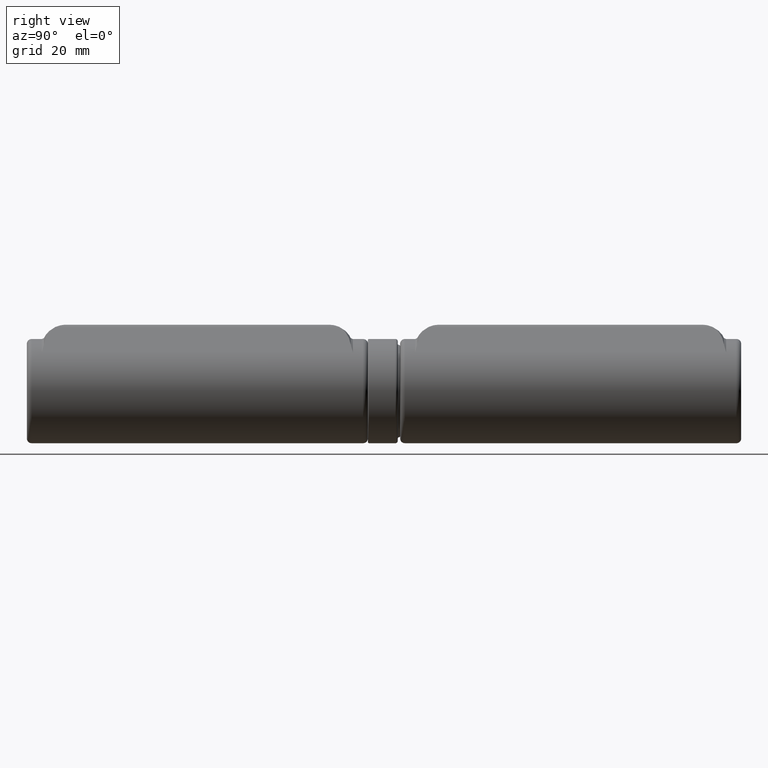
[diagram: clean part render]
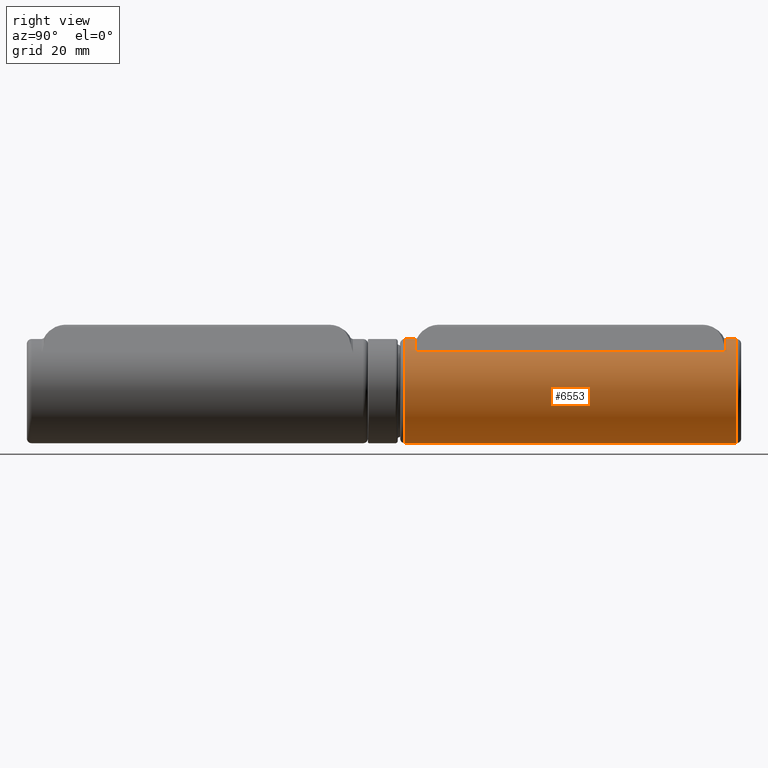
[diagram: same view with one face highlighted and labeled with its STEP entity id]
A machine part, right view. The second image highlights one B-rep face of the part: STEP entity #6553.
In plain terms, the highlighted cylindrical surface (bore or boss wall) has radius 11 mm, axis along (-0, -1, -0).
Its self-contained STEP definition (entity closure, byte-faithful):
#148 = EDGE_CURVE ( 'NONE', #4012, #4012, #6166, .T. ) ;
#196 = DIRECTION ( 'NONE',  ( 0.000000000000000000, 0.000000000000000000, -1.000000000000000000 ) ) ;
#400 = CARTESIAN_POINT ( 'NONE',  ( 0.000000000000000000, -32.81640379061052215, 0.000000000000000000 ) ) ;
#421 = VERTEX_POINT ( 'NONE', #3171 ) ;
#499 = DIRECTION ( 'NONE',  ( 0.000000000000000000, 0.000000000000000000, 1.000000000000000000 ) ) ;
#630 = ORIENTED_EDGE ( 'NONE', *, *, #10762, .F. ) ;
#875 = CIRCLE ( 'NONE', #5554, 10.99999999999999822 ) ;
#910 = DIRECTION ( 'NONE',  ( -0.000000000000000000, -1.000000000000000000, -0.000000000000000000 ) ) ;
#1173 = CARTESIAN_POINT ( 'NONE',  ( 7.293008042015048709, 32.81640379061051505, 8.234806233245793194 ) ) ;
#1808 = DIRECTION ( 'NONE',  ( 0.000000000000000000, 0.000000000000000000, 1.000000000000000000 ) ) ;
#2205 = LINE ( 'NONE', #2606, #11138 ) ;
#2429 = VERTEX_POINT ( 'NONE', #7551 ) ;
#2606 = CARTESIAN_POINT ( 'NONE',  ( 7.293008042015048709, 36.00000000000000000, 8.234806233245793194 ) ) ;
#2904 = DIRECTION ( 'NONE',  ( 0.000000000000000000, 0.000000000000000000, 1.000000000000000000 ) ) ;
#3066 = ORIENTED_EDGE ( 'NONE', *, *, #148, .T. ) ;
#3112 = CIRCLE ( 'NONE', #3821, 10.99999999999999822 ) ;
#3171 = CARTESIAN_POINT ( 'NONE',  ( 0.000000000000000000, 34.99999999999999289, 10.99999999999999822 ) ) ;
#3215 = EDGE_CURVE ( 'NONE', #11134, #7795, #3112, .T. ) ;
#3757 = DIRECTION ( 'NONE',  ( -0.000000000000000000, -1.000000000000000000, -0.000000000000000000 ) ) ;
#3821 = AXIS2_PLACEMENT_3D ( 'NONE', #5501, #6408, #2904 ) ;
#4012 = VERTEX_POINT ( 'NONE', #7479 ) ;
#4193 = CIRCLE ( 'NONE', #7011, 10.99999999999999822 ) ;
#4464 = DIRECTION ( 'NONE',  ( -0.000000000000000000, -1.000000000000000000, -0.000000000000000000 ) ) ;
#4542 = DIRECTION ( 'NONE',  ( 0.000000000000000000, 1.000000000000000000, 0.000000000000000000 ) ) ;
#4658 = CARTESIAN_POINT ( 'NONE',  ( -7.293008042015047820, 32.81640379061051505, 8.234806233245794971 ) ) ;
#4806 = FACE_BOUND ( 'NONE', #9154, .T. ) ;
#5015 = ORIENTED_EDGE ( 'NONE', *, *, #3215, .T. ) ;
#5501 = CARTESIAN_POINT ( 'NONE',  ( 0.000000000000000000, 32.81640379061051505, 0.000000000000000000 ) ) ;
#5524 = EDGE_LOOP ( 'NONE', ( #6677 ) ) ;
#5554 = AXIS2_PLACEMENT_3D ( 'NONE', #400, #8178, #499 ) ;
#5706 = VECTOR ( 'NONE', #3757, 1000.000000000000000 ) ;
#6130 = DIRECTION ( 'NONE',  ( -0.000000000000000000, -1.000000000000000000, -0.000000000000000000 ) ) ;
#6166 = CIRCLE ( 'NONE', #7004, 10.99999999999999822 ) ;
#6241 = ORIENTED_EDGE ( 'NONE', *, *, #8408, .T. ) ;
#6246 = LINE ( 'NONE', #10606, #5706 ) ;
#6408 = DIRECTION ( 'NONE',  ( -0.000000000000000000, 1.000000000000000000, 7.228014483236697048E-17 ) ) ;
#6553 = ADVANCED_FACE ( 'NONE', ( #9169, #6840, #4806 ), #9844, .T. ) ;
#6611 = ORIENTED_EDGE ( 'NONE', *, *, #8622, .T. ) ;
#6677 = ORIENTED_EDGE ( 'NONE', *, *, #10132, .T. ) ;
#6840 = FACE_OUTER_BOUND ( 'NONE', #7068, .T. ) ;
#6993 = CARTESIAN_POINT ( 'NONE',  ( 0.000000000000000000, 34.99999999999999289, 0.000000000000000000 ) ) ;
#7004 = AXIS2_PLACEMENT_3D ( 'NONE', #9751, #4542, #9975 ) ;
#7011 = AXIS2_PLACEMENT_3D ( 'NONE', #6993, #6130, #1808 ) ;
#7023 = AXIS2_PLACEMENT_3D ( 'NONE', #10565, #4464, #196 ) ;
#7068 = EDGE_LOOP ( 'NONE', ( #3066 ) ) ;
#7146 = VERTEX_POINT ( 'NONE', #9820 ) ;
#7479 = CARTESIAN_POINT ( 'NONE',  ( 0.000000000000000000, -34.99999999999999289, 10.99999999999999822 ) ) ;
#7551 = CARTESIAN_POINT ( 'NONE',  ( -7.293008042015047820, -32.81640379061052215, 8.234806233245794971 ) ) ;
#7795 = VERTEX_POINT ( 'NONE', #1173 ) ;
#8178 = DIRECTION ( 'NONE',  ( 0.000000000000000000, -1.000000000000000000, 7.228014483236697048E-17 ) ) ;
#8408 = EDGE_CURVE ( 'NONE', #7795, #7146, #2205, .T. ) ;
#8622 = EDGE_CURVE ( 'NONE', #7146, #2429, #875, .T. ) ;
#9154 = EDGE_LOOP ( 'NONE', ( #6241, #6611, #630, #5015 ) ) ;
#9169 = FACE_OUTER_BOUND ( 'NONE', #5524, .T. ) ;
#9751 = CARTESIAN_POINT ( 'NONE',  ( 0.000000000000000000, -34.99999999999999289, 0.000000000000000000 ) ) ;
#9820 = CARTESIAN_POINT ( 'NONE',  ( 7.293008042015048709, -32.81640379061051505, 8.234806233245793194 ) ) ;
#9844 = CYLINDRICAL_SURFACE ( 'NONE', #7023, 10.99999999999999822 ) ;
#9975 = DIRECTION ( 'NONE',  ( 0.000000000000000000, 0.000000000000000000, 1.000000000000000000 ) ) ;
#10132 = EDGE_CURVE ( 'NONE', #421, #421, #4193, .T. ) ;
#10565 = CARTESIAN_POINT ( 'NONE',  ( 0.000000000000000000, 36.00000000000000000, 0.000000000000000000 ) ) ;
#10606 = CARTESIAN_POINT ( 'NONE',  ( -7.293008042015047820, 36.00000000000000000, 8.234806233245794971 ) ) ;
#10762 = EDGE_CURVE ( 'NONE', #11134, #2429, #6246, .T. ) ;
#11134 = VERTEX_POINT ( 'NONE', #4658 ) ;
#11138 = VECTOR ( 'NONE', #910, 1000.000000000000000 ) ;